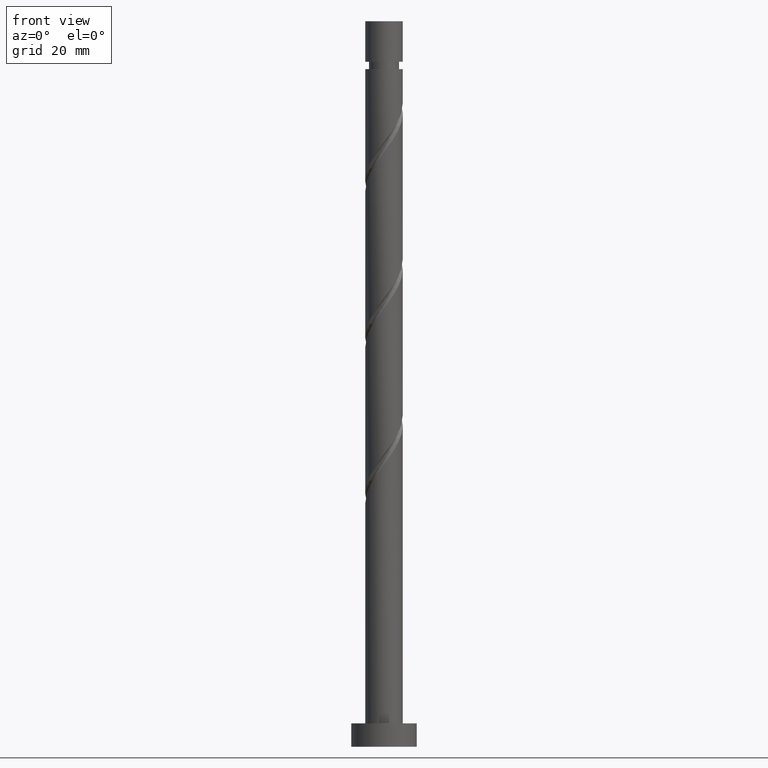
[diagram: clean part render]
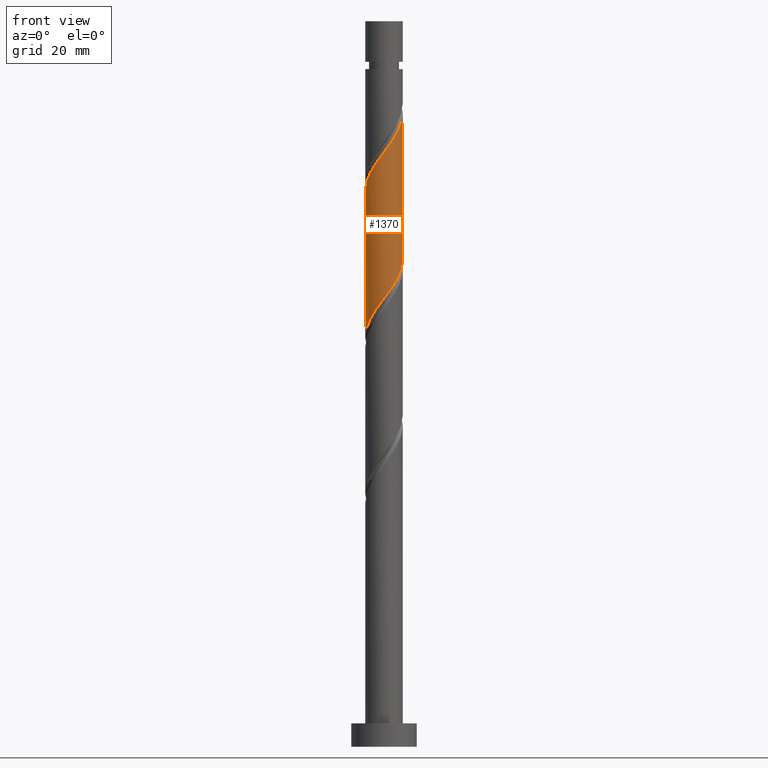
[diagram: same view with one face highlighted and labeled with its STEP entity id]
A machine part, front view. The second image highlights one B-rep face of the part: STEP entity #1370.
In plain terms, the highlighted cylindrical surface (edge-blend (fillet) strip) has radius 4 mm, axis along (-0, -0, -1).
Its self-contained STEP definition (entity closure, byte-faithful):
#44 = VERTEX_POINT ( 'NONE', #872 ) ;
#65 = CARTESIAN_POINT ( 'NONE',  ( 3.334708473430080922, -2.209008691072461339, 132.2518546472079208 ) ) ;
#67 = DIRECTION ( 'NONE',  ( -0.000000000000000000, -0.000000000000000000, -1.000000000000000000 ) ) ;
#72 = CARTESIAN_POINT ( 'NONE',  ( -0.2457034069343206062, -3.992446597741906800, 126.6962990916523637 ) ) ;
#115 = FACE_OUTER_BOUND ( 'NONE', #443, .T. ) ;
#147 = CARTESIAN_POINT ( 'NONE',  ( -2.254808073111001843, -3.345617825659326972, 92.66852131387457803 ) ) ;
#168 = LINE ( 'NONE', #692, #811 ) ;
#182 = CARTESIAN_POINT ( 'NONE',  ( -4.000000000000000888, 3.185156086491111378E-15, 87.48208796908465956 ) ) ;
#210 = CARTESIAN_POINT ( 'NONE',  ( -3.815205935069474030, -1.312067740227888635, 120.4462990916524063 ) ) ;
#221 = VERTEX_POINT ( 'NONE', #609 ) ;
#236 = CYLINDRICAL_SURFACE ( 'NONE', #475, 4.000000000000000000 ) ;
#265 = CARTESIAN_POINT ( 'NONE',  ( 2.209008691072453345, -3.334708473430078701, 98.91852131387460645 ) ) ;
#273 = CARTESIAN_POINT ( 'NONE',  ( -4.000000000000000888, 3.185156086491111378E-15, 87.48208796908465956 ) ) ;
#285 = ORIENTED_EDGE ( 'NONE', *, *, #675, .F. ) ;
#302 = DIRECTION ( 'NONE',  ( -0.000000000000000000, -0.000000000000000000, -1.000000000000000000 ) ) ;
#323 = CARTESIAN_POINT ( 'NONE',  ( 4.000000000000006217, -0.1229678066307037521, 135.1917909706363901 ) ) ;
#345 = CARTESIAN_POINT ( 'NONE',  ( -4.000000000000006217, 2.691681199851624009E-16, 118.6882879919978535 ) ) ;
#382 = DIRECTION ( 'NONE',  ( -0.000000000000000000, -0.000000000000000000, -1.000000000000000000 ) ) ;
#386 = CARTESIAN_POINT ( 'NONE',  ( -0.7959899496852961276, -3.920000000000000817, 94.75185464720793505 ) ) ;
#402 = CARTESIAN_POINT ( 'NONE',  ( 0.2457034069343166371, -3.992446597741900582, 96.14074353609682078 ) ) ;
#410 = CARTESIAN_POINT ( 'NONE',  ( -3.625529984802031702, -1.769985991819531534, 89.89074353609682078 ) ) ;
#443 = EDGE_LOOP ( 'NONE', ( #285, #1433, #752, #1147 ) ) ;
#469 = CARTESIAN_POINT ( 'NONE',  ( -2.648031390325384038, -3.043886962058127921, 123.2240768694301778 ) ) ;
#475 = AXIS2_PLACEMENT_3D ( 'NONE', #1033, #382, #920 ) ;
#508 = CARTESIAN_POINT ( 'NONE',  ( 3.920000000000000817, -0.7959899496852963496, 103.0851879805412636 ) ) ;
#517 = CARTESIAN_POINT ( 'NONE',  ( 2.648031390325375156, -3.043886962058126144, 99.61296575831903510 ) ) ;
#526 = CARTESIAN_POINT ( 'NONE',  ( 1.270652482415435713, -3.792814557677647525, 97.52963242498570651 ) ) ;
#597 = CARTESIAN_POINT ( 'NONE',  ( 3.043886962058127921, -2.648031390325384038, 131.5574102027634922 ) ) ;
#603 =( BOUNDED_CURVE ( )  B_SPLINE_CURVE ( 2, ( #1325, #656, #508, #772, #1738, #1614, #1184, #517, #265, #1057, #526, #1604, #402, #674, #386, #800, #1222, #147, #1047, #1065, #1630, #410, #924, #1471, #1352, #1360, #273 ),
 .UNSPECIFIED., .F., .T. ) 
 B_SPLINE_CURVE_WITH_KNOTS ( ( 3, 2, 2, 2, 2, 2, 2, 2, 2, 2, 2, 2, 2, 3 ),
 ( 0.5545317669814462391, 0.5625000000000000000, 0.5729166666666666297, 0.5833333333333333703, 0.5937500000000000000, 0.6041666666666666297, 0.6145833333333333703, 0.6250000000000000000, 0.6354166666666666297, 0.6458333333333333703, 0.6562500000000000000, 0.6666666666666666297, 0.6770833333333333703, 0.6795317669814463502 ),
 .UNSPECIFIED. ) 
 CURVE ( )  GEOMETRIC_REPRESENTATION_ITEM ( )  RATIONAL_B_SPLINE_CURVE ( ( 0.9062941362546351742, 0.9031415850403394785, 0.9090909090909148338, 0.9013135103398334236, 0.9090909090909148338, 0.9013135103398334236, 0.9090909090909148338, 0.9013135103398334236, 0.9090909090909148338, 0.9013135103398334236, 0.9090909090909148338, 0.9013135103398334236, 0.9090909090909148338, 0.9013135103398334236, 0.9090909090909148338, 0.9013135103398334236, 0.9090909090909148338, 0.9013135103398334236, 0.9090909090909148338, 0.9013135103398334236, 0.9090909090909148338, 0.9013135103398334236, 0.9090909090909148338, 0.9013135103398334236, 0.9090909090909148338, 0.9072628343904085568, 0.9062941362546350632 ) ) 
 REPRESENTATION_ITEM ( '' )  );
#606 = CARTESIAN_POINT ( 'NONE',  ( 0.2799121591427021216, -4.024794064930541815, 127.3907435360968918 ) ) ;
#609 = CARTESIAN_POINT ( 'NONE',  ( 4.000000000000006217, 2.841219044287825271E-15, 135.3549546586645533 ) ) ;
#616 = CARTESIAN_POINT ( 'NONE',  ( 2.254808073111003175, -3.345617825659334521, 130.1685213138746633 ) ) ;
#625 = CARTESIAN_POINT ( 'NONE',  ( 2.649347517584565548, -2.996824607992357947, 130.8629657583190351 ) ) ;
#648 = VERTEX_POINT ( 'NONE', #182 ) ;
#656 = CARTESIAN_POINT ( 'NONE',  ( 4.000000000000001776, -0.4020151261036816748, 103.6153282665620878 ) ) ;
#674 = CARTESIAN_POINT ( 'NONE',  ( -0.2799121591427048972, -4.024794064930534709, 95.44629909165234949 ) ) ;
#675 = EDGE_CURVE ( 'NONE', #221, #1326, #1400, .T. ) ;
#692 = CARTESIAN_POINT ( 'NONE',  ( -4.000000000000000000, 0.000000000000000000, 155.0000000000000000 ) ) ;
#723 = CARTESIAN_POINT ( 'NONE',  ( 3.960099130553270452, -0.7713189730113449993, 134.3351879805412921 ) ) ;
#749 = CARTESIAN_POINT ( 'NONE',  ( 3.792814557677652854, -1.270652482415441709, 133.6407435360967781 ) ) ;
#752 = ORIENTED_EDGE ( 'NONE', *, *, #1554, .T. ) ;
#758 = CARTESIAN_POINT ( 'NONE',  ( -0.7713189730113432230, -3.960099130553272229, 126.0018546472079777 ) ) ;
#772 = CARTESIAN_POINT ( 'NONE',  ( 3.815205935069463816, -1.312067740227890411, 102.3907435360967924 ) ) ;
#800 = CARTESIAN_POINT ( 'NONE',  ( -1.312067740227889079, -3.815205935069465593, 94.05741020276349218 ) ) ;
#811 = VECTOR ( 'NONE', #302, 1000.000000000000000 ) ;
#872 = CARTESIAN_POINT ( 'NONE',  ( -4.000000000000006217, 2.691681199851623516E-16, 118.6882879919978535 ) ) ;
#883 = CARTESIAN_POINT ( 'NONE',  ( -3.920000000000006146, -0.7959899496852959055, 119.7518546472079350 ) ) ;
#920 = DIRECTION ( 'NONE',  ( -1.000000000000000000, 0.000000000000000000, 0.000000000000000000 ) ) ;
#924 = CARTESIAN_POINT ( 'NONE',  ( -3.792814557677647525, -1.270652482415436157, 89.19629909165236370 ) ) ;
#991 = EDGE_CURVE ( 'NONE', #1326, #648, #603, .T. ) ;
#1006 = CARTESIAN_POINT ( 'NONE',  ( 4.000000000000006217, 2.841219044287825271E-15, 135.3549546586645533 ) ) ;
#1033 = CARTESIAN_POINT ( 'NONE',  ( 0.000000000000000000, 0.000000000000000000, 155.0000000000000000 ) ) ;
#1047 = CARTESIAN_POINT ( 'NONE',  ( -2.649347517584564660, -2.996824607992351286, 91.97407686943016358 ) ) ;
#1057 = CARTESIAN_POINT ( 'NONE',  ( 1.769985991819531534, -3.625529984802031702, 98.22407686943014937 ) ) ;
#1065 = CARTESIAN_POINT ( 'NONE',  ( -3.043886962058126144, -2.648031390325375156, 91.27963242498570651 ) ) ;
#1073 = CARTESIAN_POINT ( 'NONE',  ( 4.000000000000000888, -4.172105859770047659E-15, 104.1487546357513452 ) ) ;
#1104 = EDGE_CURVE ( 'NONE', #44, #221, #1211, .T. ) ;
#1111 = CARTESIAN_POINT ( 'NONE',  ( 4.000000000000000000, 4.898587196589412829E-16, 155.0000000000000000 ) ) ;
#1135 = CARTESIAN_POINT ( 'NONE',  ( 3.992446597741906800, -0.2457034069343226046, 135.0296324249857207 ) ) ;
#1142 = CARTESIAN_POINT ( 'NONE',  ( -3.580411880364402499, -1.783437906669446349, 121.1407435360968208 ) ) ;
#1147 = ORIENTED_EDGE ( 'NONE', *, *, #991, .F. ) ;
#1162 = CARTESIAN_POINT ( 'NONE',  ( -2.996824607992357503, -2.649347517584565992, 122.5296324249857065 ) ) ;
#1184 = CARTESIAN_POINT ( 'NONE',  ( 2.996824607992351286, -2.649347517584565104, 100.3074102027635064 ) ) ;
#1211 =( BOUNDED_CURVE ( )  B_SPLINE_CURVE ( 2, ( #345, #1284, #883, #210, #1142, #1705, #1162, #469, #1302, #1557, #1570, #758, #72, #606, #1685, #1312, #1429, #616, #625, #597, #65, #1676, #749, #723, #1135, #323, #1006 ),
 .UNSPECIFIED., .F., .T. ) 
 B_SPLINE_CURVE_WITH_KNOTS ( ( 3, 2, 2, 2, 2, 2, 2, 2, 2, 2, 2, 2, 2, 3 ),
 ( 0.5545317669814461281, 0.5625000000000000000, 0.5729166666666667407, 0.5833333333333332593, 0.5937500000000000000, 0.6041666666666667407, 0.6145833333333332593, 0.6250000000000000000, 0.6354166666666667407, 0.6458333333333332593, 0.6562500000000000000, 0.6666666666666667407, 0.6770833333333332593, 0.6795317669814461281 ),
 .UNSPECIFIED. ) 
 CURVE ( )  GEOMETRIC_REPRESENTATION_ITEM ( )  RATIONAL_B_SPLINE_CURVE ( ( 0.9062941362546417245, 0.9031415850403458068, 0.9090909090909213841, 0.9013135103398396408, 0.9090909090909213841, 0.9013135103398396408, 0.9090909090909213841, 0.9013135103398396408, 0.9090909090909213841, 0.9013135103398396408, 0.9090909090909213841, 0.9013135103398396408, 0.9090909090909213841, 0.9013135103398396408, 0.9090909090909213841, 0.9013135103398396408, 0.9090909090909213841, 0.9013135103398396408, 0.9090909090909213841, 0.9013135103398396408, 0.9090909090909213841, 0.9013135103398396408, 0.9090909090909213841, 0.9013135103398396408, 0.9090909090909213841, 0.9072628343904152182, 0.9062941362546417245 ) ) 
 REPRESENTATION_ITEM ( '' )  );
#1222 = CARTESIAN_POINT ( 'NONE',  ( -1.783437906669445683, -3.580411880364395838, 93.36296575831902089 ) ) ;
#1284 = CARTESIAN_POINT ( 'NONE',  ( -4.000000000000008882, -0.4020151261036786217, 119.2217143611871393 ) ) ;
#1300 = VECTOR ( 'NONE', #67, 1000.000000000000000 ) ;
#1302 = CARTESIAN_POINT ( 'NONE',  ( -2.209008691072459563, -3.334708473430082698, 123.9185213138745780 ) ) ;
#1312 = CARTESIAN_POINT ( 'NONE',  ( 1.312067740227888413, -3.815205935069474030, 128.7796324249857207 ) ) ;
#1325 = CARTESIAN_POINT ( 'NONE',  ( 4.000000000000000888, -4.172105859770047659E-15, 104.1487546357513452 ) ) ;
#1326 = VERTEX_POINT ( 'NONE', #1073 ) ;
#1352 = CARTESIAN_POINT ( 'NONE',  ( -3.992446597741900582, -0.2457034069343177751, 87.80741020276349218 ) ) ;
#1360 = CARTESIAN_POINT ( 'NONE',  ( -4.000000000000000888, -0.1229678066306920114, 87.64525165711282284 ) ) ;
#1370 = ADVANCED_FACE ( 'NONE', ( #115 ), #236, .T. ) ;
#1400 = LINE ( 'NONE', #1111, #1300 ) ;
#1429 = CARTESIAN_POINT ( 'NONE',  ( 1.783437906669445239, -3.580411880364402943, 129.4740768694301494 ) ) ;
#1433 = ORIENTED_EDGE ( 'NONE', *, *, #1104, .F. ) ;
#1471 = CARTESIAN_POINT ( 'NONE',  ( -3.960099130553264679, -0.7713189730113395592, 88.50185464720793505 ) ) ;
#1554 = EDGE_CURVE ( 'NONE', #44, #648, #168, .T. ) ;
#1557 = CARTESIAN_POINT ( 'NONE',  ( -1.769985991819538196, -3.625529984802036587, 124.6129657583190777 ) ) ;
#1570 = CARTESIAN_POINT ( 'NONE',  ( -1.270652482415441042, -3.792814557677652854, 125.3074102027634495 ) ) ;
#1604 = CARTESIAN_POINT ( 'NONE',  ( 0.7713189730113384490, -3.960099130553264679, 96.83518798054124943 ) ) ;
#1614 = CARTESIAN_POINT ( 'NONE',  ( 3.345617825659326083, -2.254808073111003619, 101.0018546472079066 ) ) ;
#1630 = CARTESIAN_POINT ( 'NONE',  ( -3.334708473430077813, -2.209008691072454234, 90.58518798054126364 ) ) ;
#1676 = CARTESIAN_POINT ( 'NONE',  ( 3.625529984802036143, -1.769985991819538196, 132.9462990916524348 ) ) ;
#1685 = CARTESIAN_POINT ( 'NONE',  ( 0.7959899496852955725, -3.920000000000006146, 128.0851879805412636 ) ) ;
#1705 = CARTESIAN_POINT ( 'NONE',  ( -3.345617825659333633, -2.254808073111004951, 121.8351879805412779 ) ) ;
#1738 = CARTESIAN_POINT ( 'NONE',  ( 3.580411880364395394, -1.783437906669447237, 101.6962990916523921 ) ) ;